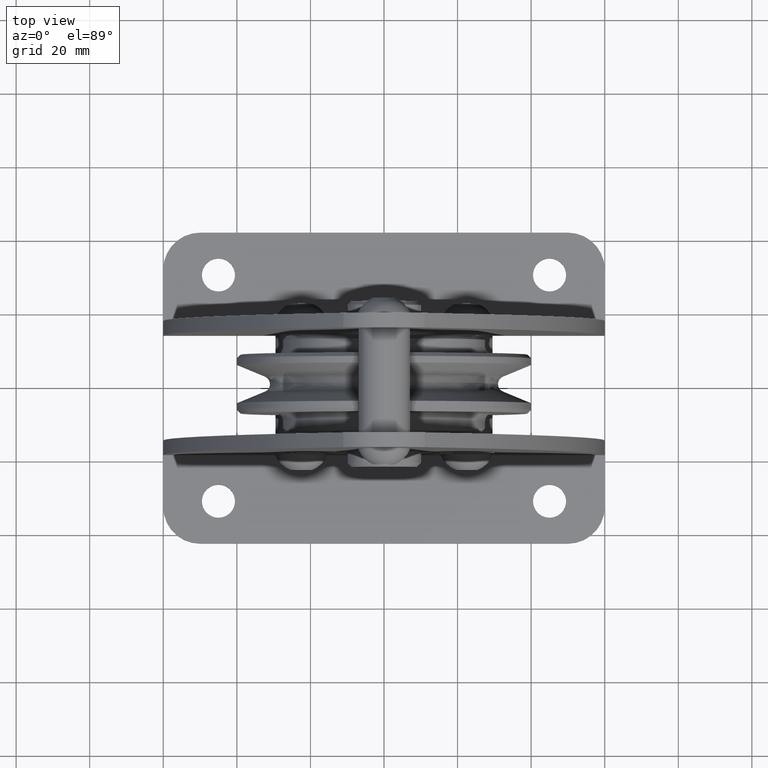
[diagram: clean part render]
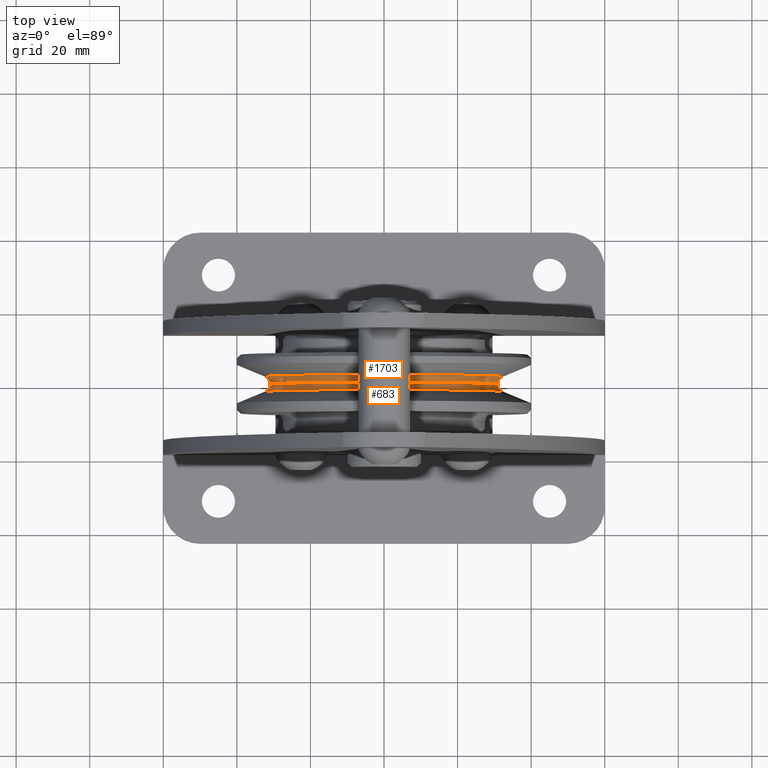
[diagram: same view with one multi-face feature highlighted, each face labeled with its STEP entity id]
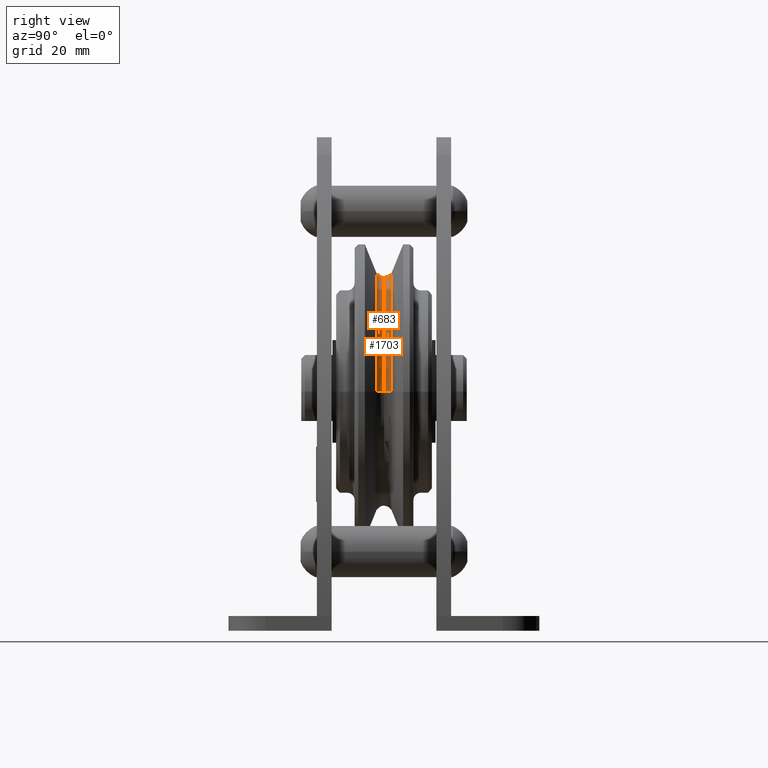
[diagram: same view with one multi-face feature highlighted, each face labeled with its STEP entity id]
A machine part, top view. The highlighted faces form ONE feature: a constant-radius fillet chain: 2 tangent blend faces with common blend radius 2.2 mm. The faces share edges in the B-rep.
A second angle (right view) of the same feature is appended — it is thin or edge-on in the first view.
Their STEP definitions:
[1] entity #683 (Torus):
#683=ADVANCED_FACE('',(#2017),#2018,.F.);
#2017=FACE_OUTER_BOUND('',#4087,.T.);
#2018=TOROIDAL_SURFACE('',#4088,33.2000003208,2.2000003208);
#4087=EDGE_LOOP('',(#6151,#6152,#6153,#6154));
#4088=AXIS2_PLACEMENT_3D('',#6155,#6156,#6157);
#6151=ORIENTED_EDGE('',*,*,#12362,.F.);
#6152=ORIENTED_EDGE('',*,*,#12363,.T.);
#6153=ORIENTED_EDGE('',*,*,#12364,.F.);
#6154=ORIENTED_EDGE('',*,*,#12365,.T.);
#6155=CARTESIAN_POINT('',(0.0,0.0,0.0));
#6156=DIRECTION('',(0.0,-1.0,0.0));
#6157=DIRECTION('',(1.0,0.0,0.0));
#12362=EDGE_CURVE('',#14810,#14811,#14812,.T.);
#12363=EDGE_CURVE('',#14810,#14813,#14814,.T.);
#12364=EDGE_CURVE('',#14815,#14813,#14816,.T.);
#12365=EDGE_CURVE('',#14815,#14811,#14817,.T.);
#14810=VERTEX_POINT('',#18430);
#14811=VERTEX_POINT('',#18431);
#14812=CIRCLE('',#18432,31.0);
#14813=VERTEX_POINT('',#18433);
#14814=CIRCLE('',#18434,2.2000003208);
#14815=VERTEX_POINT('',#18435);
#14816=CIRCLE('',#18436,32.358096);
#14817=CIRCLE('',#18437,2.2000003208);
#18430=CARTESIAN_POINT('',(-31.0,-2.69422335099086E-016,3.5398482105291E-015));
#18431=CARTESIAN_POINT('',(31.0,-2.69422335099086E-016,-3.5398482105291E-015));
#18432=AXIS2_PLACEMENT_3D('',#26514,#26515,#26516);
#18433=CARTESIAN_POINT('',(-32.358096,-2.032535,3.96272386929028E-015));
#18434=AXIS2_PLACEMENT_3D('',#26517,#26518,#26519);
#18435=CARTESIAN_POINT('',(32.358096,-2.032535,0.0));
#18436=AXIS2_PLACEMENT_3D('',#26520,#26521,#26522);
#18437=AXIS2_PLACEMENT_3D('',#26523,#26524,#26525);
#26514=CARTESIAN_POINT('',(0.0,-2.69422335099086E-016,0.0));
#26515=DIRECTION('',(-0.0,1.0,0.0));
#26516=DIRECTION('',(0.0,0.0,1.0));
#26517=CARTESIAN_POINT('',(-33.2000003208,0.0,4.06582741245588E-015));
#26518=DIRECTION('',(-1.22464679914735E-016,0.0,-1.0));
#26519=DIRECTION('',(-1.0,0.0,1.22464679914735E-016));
#26520=CARTESIAN_POINT('',(0.0,-2.032535,0.0));
#26521=DIRECTION('',(0.0,-1.0,0.0));
#26522=DIRECTION('',(1.0,0.0,0.0));
#26523=CARTESIAN_POINT('',(33.2000003208,0.0,-4.06582741245588E-015));
#26524=DIRECTION('',(-1.22464679914735E-016,-0.0,-1.0));
#26525=DIRECTION('',(1.0,0.0,-1.22464679914735E-016));
[2] entity #1703 (Torus):
#1703=ADVANCED_FACE('',(#3600),#3601,.F.);
#3600=FACE_OUTER_BOUND('',#5670,.T.);
#3601=TOROIDAL_SURFACE('',#5671,33.2000003208,2.2000003208);
#5670=EDGE_LOOP('',(#11096,#11097,#11098,#11099));
#5671=AXIS2_PLACEMENT_3D('',#11100,#11101,#11102);
#11096=ORIENTED_EDGE('',*,*,#12362,.T.);
#11097=ORIENTED_EDGE('',*,*,#12542,.T.);
#11098=ORIENTED_EDGE('',*,*,#12547,.T.);
#11099=ORIENTED_EDGE('',*,*,#12540,.T.);
#11100=CARTESIAN_POINT('',(0.0,0.0,0.0));
#11101=DIRECTION('',(0.0,-1.0,0.0));
#11102=DIRECTION('',(1.0,0.0,0.0));
#12362=EDGE_CURVE('',#14810,#14811,#14812,.T.);
#12540=EDGE_CURVE('',#15128,#14810,#15129,.T.);
#12542=EDGE_CURVE('',#14811,#15130,#15132,.T.);
#12547=EDGE_CURVE('',#15130,#15128,#15139,.T.);
#14810=VERTEX_POINT('',#18430);
#14811=VERTEX_POINT('',#18431);
#14812=CIRCLE('',#18432,31.0);
#15128=VERTEX_POINT('',#19656);
#15129=CIRCLE('',#19657,2.2000003208);
#15130=VERTEX_POINT('',#19658);
#15132=CIRCLE('',#19660,2.2000003208);
#15139=CIRCLE('',#19669,32.358096);
#18430=CARTESIAN_POINT('',(-31.0,-2.69422335099086E-016,3.5398482105291E-015));
#18431=CARTESIAN_POINT('',(31.0,-2.69422335099086E-016,-3.5398482105291E-015));
#18432=AXIS2_PLACEMENT_3D('',#26514,#26515,#26516);
#19656=CARTESIAN_POINT('',(-32.358096,2.032535,3.96272386929028E-015));
#19657=AXIS2_PLACEMENT_3D('',#26758,#26759,#26760);
#19658=CARTESIAN_POINT('',(32.358096,2.032535,0.0));
#19660=AXIS2_PLACEMENT_3D('',#26764,#26765,#26766);
#19669=AXIS2_PLACEMENT_3D('',#26772,#26773,#26774);
#26514=CARTESIAN_POINT('',(0.0,-2.69422335099086E-016,0.0));
#26515=DIRECTION('',(-0.0,1.0,0.0));
#26516=DIRECTION('',(0.0,0.0,1.0));
#26758=CARTESIAN_POINT('',(-33.2000003208,0.0,4.06582741245588E-015));
#26759=DIRECTION('',(-1.22464679914735E-016,0.0,-1.0));
#26760=DIRECTION('',(-1.0,0.0,1.22464679914735E-016));
#26764=CARTESIAN_POINT('',(33.2000003208,0.0,-4.06582741245588E-015));
#26765=DIRECTION('',(-1.22464679914735E-016,-0.0,-1.0));
#26766=DIRECTION('',(1.0,0.0,-1.22464679914735E-016));
#26772=CARTESIAN_POINT('',(0.0,2.032535,0.0));
#26773=DIRECTION('',(0.0,-1.0,0.0));
#26774=DIRECTION('',(1.0,0.0,0.0));